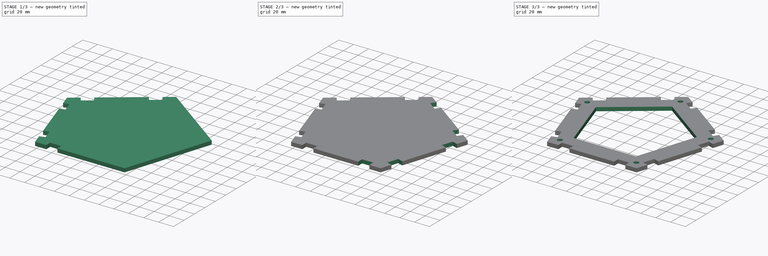
[diagram: build sequence overview — one tinted view per stage of 3, left to right]
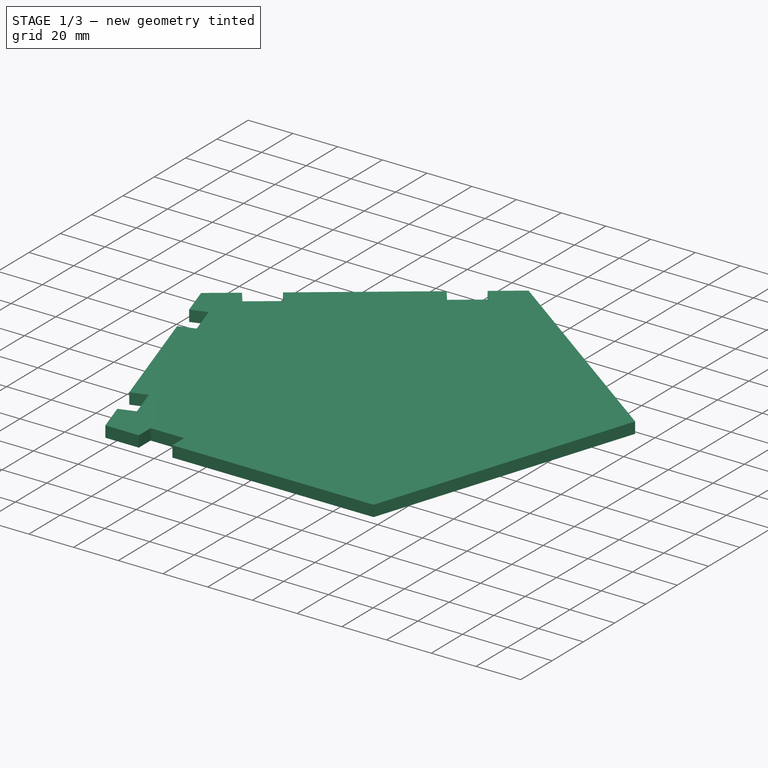
[diagram: stage 1 of 3 — iso view after this stage's code; geometry added in this stage tinted green]
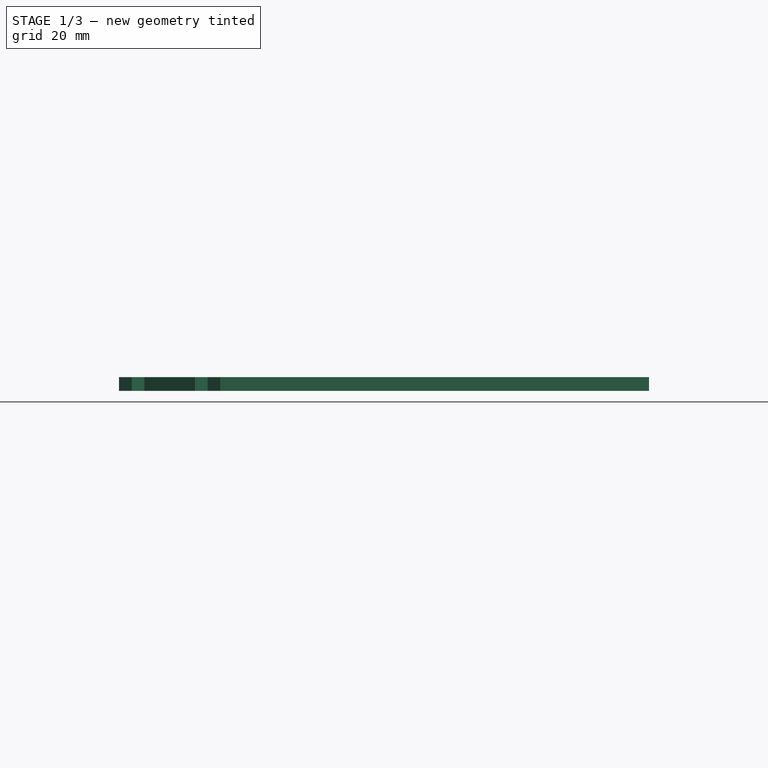
[diagram: stage 1 of 3 — front view after this stage's code; geometry added in this stage tinted green]
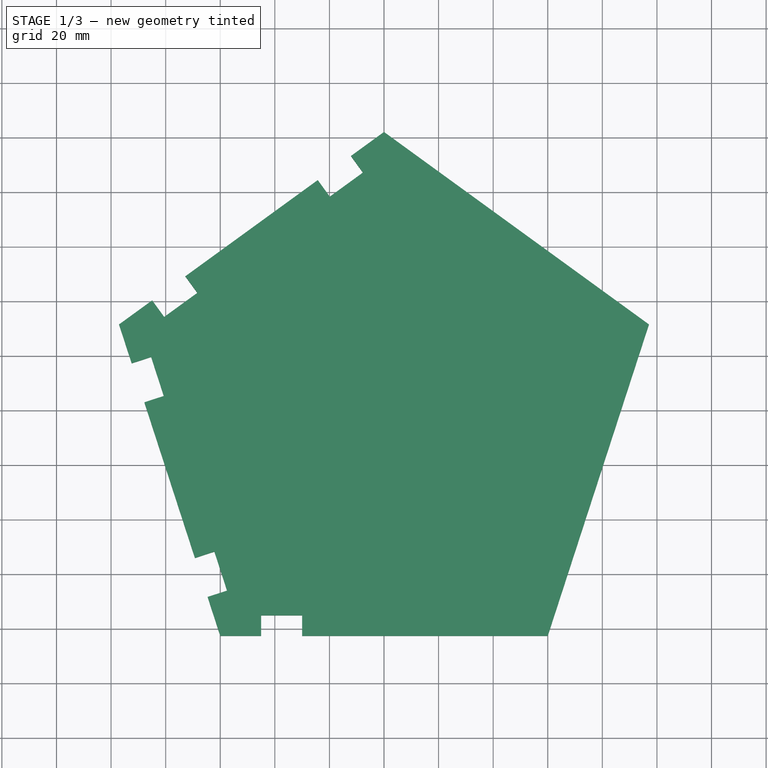
[diagram: stage 1 of 3 — top view after this stage's code; geometry added in this stage tinted green]
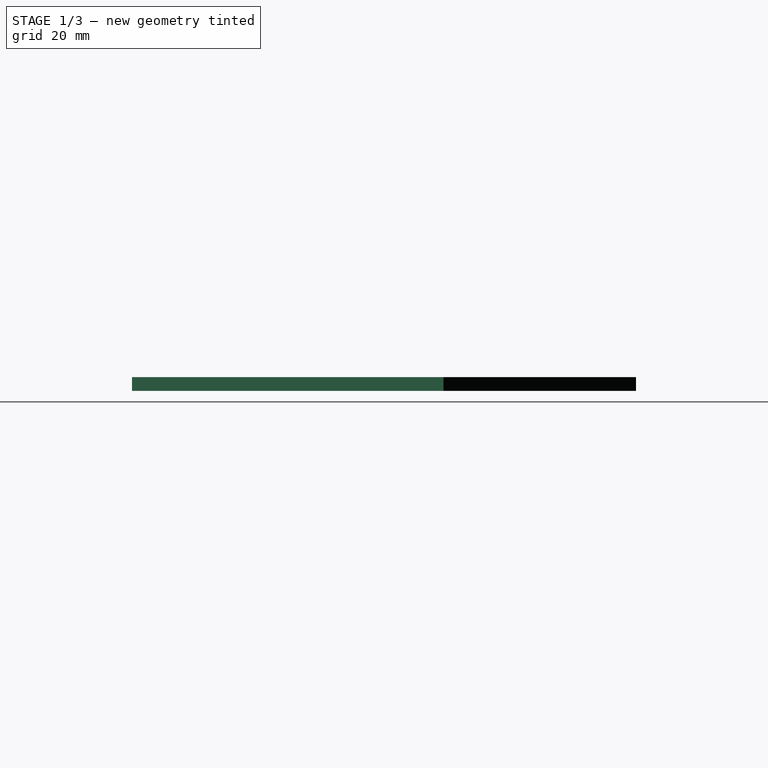
[diagram: stage 1 of 3 — right view after this stage's code; geometry added in this stage tinted green]
FCSTD DOCUMENT  (FreeCAD 0.15R4671 (Git))
Label: haut_rebord
License: All rights reserved
LicenseURL: http://fr.wikipedia.org/wiki/<copyright redacted>
objects: Sketcher::SketchObject×4, PartDesign::Pocket×3, PartDesign::Pad×1, PartDesign::Mirrored×1
note: 13 computed .brp shape members not serialized (recipe doc carries the construction recipe); baked Part::Feature solids carry a one-line shape summary decoded from their .brp

FEATURE [Sketcher::SketchObject] Sketch  label="Pentagone_Sketch"
  sketch-geometry (6):
    g0: LineSegment StartX=0 StartY=102.078 StartZ=0 EndX=-97.082 EndY=31.5439 EndZ=0
    g1: LineSegment StartX=-97.082 StartY=31.5439 StartZ=0 EndX=-60 EndY=-82.5829 EndZ=0
    g2: LineSegment StartX=-60 StartY=-82.5829 StartZ=0 EndX=60 EndY=-82.5829 EndZ=0
    g3: LineSegment StartX=60 StartY=-82.5829 StartZ=0 EndX=97.082 EndY=31.5439 EndZ=0
    g4: LineSegment StartX=97.082 StartY=31.5439 StartZ=0 EndX=0 EndY=102.078 EndZ=0
    g5: Circle [constr] CenterX=0 CenterY=0 CenterZ=0 NormalX=0 NormalY=0 NormalZ=1 Radius=102.078
  constraints (15):
    c: Coincident(g0,g1)
    c: Coincident(g1,g2)
    c: Coincident(g2,g3)
    c: Coincident(g3,g4)
    c: Coincident(g4,g0)
    c: Equal(g0, g1-g4) x4
    c: PointOnObject(g0,g5)
    c: PointOnObject(g1,g5)
    c: PointOnObject(g2,g5)
    c: PointOnObject(g3,g5)
    c: PointOnObject(g4,g5)
    c: Coincident(g2,g-1)
    c: Distance(g0) = 120
    c: Coincident(g5,g-1)
    c: PointOnObject(g0,g-2)
FEATURE [PartDesign::Pad] Pad  label="Pentagone_Pad"
  Length = 5
  Length2 = 100
  Sketch = -> Sketch
  Type = 0
FEATURE [Sketcher::SketchObject] Sketch001
  ExternalGeometry = -> [Pad]
  Placement = pos=(0,0,5) rot=(0,0,1;0rad)
  Support = -> Pad [Face7]
  sketch-geometry (20):
    g0: LineSegment StartX=-84.9468 StartY=40.3606 StartZ=0 EndX=-72.8115 EndY=49.1774 EndZ=0
    g1: LineSegment StartX=-72.8115 StartY=49.1774 StartZ=0 EndX=-68.4031 EndY=43.1098 EndZ=0
    g2: LineSegment StartX=-68.4031 StartY=43.1098 StartZ=0 EndX=-80.5384 EndY=34.293 EndZ=0
    g3: LineSegment StartX=-80.5384 StartY=34.293 StartZ=0 EndX=-84.9468 EndY=40.3606 EndZ=0
    g4: LineSegment StartX=-12.1353 StartY=93.2613 StartZ=0 EndX=-7.72687 EndY=87.1937 EndZ=0
    g5: LineSegment StartX=-7.72687 StartY=87.1937 StartZ=0 EndX=-19.8621 EndY=78.3769 EndZ=0
    g6: LineSegment StartX=-19.8621 StartY=78.3769 StartZ=0 EndX=-24.2705 EndY=84.4445 EndZ=0
    g7: LineSegment StartX=-24.2705 StartY=84.4445 StartZ=0 EndX=-12.1353 EndY=93.2613 EndZ=0
    g8: LineSegment StartX=-92.4468 StartY=17.278 StartZ=0 EndX=-85.3139 EndY=19.5956 EndZ=0
    g9: LineSegment StartX=-85.3139 StartY=19.5956 StartZ=0 EndX=-80.6786 EndY=5.3298 EndZ=0
    g10: LineSegment StartX=-80.6786 StartY=5.3298 StartZ=0 EndX=-87.8115 EndY=3.01217 EndZ=0
    g11: LineSegment StartX=-87.8115 StartY=3.01217 StartZ=0 EndX=-92.4468 EndY=17.278 EndZ=0
    g12: LineSegment StartX=-69.2705 StartY=-54.0512 StartZ=0 EndX=-62.1376 EndY=-51.7336 EndZ=0
    g13: LineSegment StartX=-62.1376 StartY=-51.7336 StartZ=0 EndX=-57.5023 EndY=-65.9994 EndZ=0
    g14: LineSegment StartX=-57.5023 StartY=-65.9994 StartZ=0 EndX=-64.6353 EndY=-68.3171 EndZ=0
    g15: LineSegment StartX=-64.6353 StartY=-68.3171 StartZ=0 EndX=-69.2705 EndY=-54.0512 EndZ=0
    g16: LineSegment StartX=-45 StartY=-82.5829 StartZ=0 EndX=-45 EndY=-75.0829 EndZ=0
    g17: LineSegment StartX=-45 StartY=-75.0829 StartZ=0 EndX=-30 EndY=-75.0829 EndZ=0
    g18: LineSegment StartX=-30 StartY=-75.0829 StartZ=0 EndX=-30 EndY=-82.5829 EndZ=0
    g19: LineSegment StartX=-30 StartY=-82.5829 StartZ=0 EndX=-45 EndY=-82.5829 EndZ=0
  constraints (61):
    c: PointOnObject(g0,g-3)
    c: PointOnObject(g0,g-3)
    c: Coincident(g0,g1)
    c: Coincident(g1,g2)
    c: Coincident(g2,g3)
    c: Coincident(g3,g0)
    c: Parallel(g1,g3)
    c: Perpendicular(g-3,g1)
    c: Parallel(g2,g-3)
    c: Distance(g0,g-4) = 15
    c: Distance(g1) = 7.5
    c: Distance(g2) = 15
    c: PointOnObject(g4,g-3)
    c: Coincident(g4,g5)
    c: Coincident(g5,g6)
    c: PointOnObject(g6,g-3)
    c: Coincident(g6,g7)
    c: Coincident(g7,g4)
    c: Perpendicular(g4,g-3)
    c: Parallel(g5,g-3)
    c: Equal(g1,g6)
    c: Equal(g6,g4)
    c: Equal(g5,g2)
    c: Distance(g4,g-3) = 15
    c: PointOnObject(g8,g-4)
    c: Coincident(g8,g9)
    c: Coincident(g9,g10)
    c: PointOnObject(g10,g-4)
    c: Coincident(g10,g11)
    c: Coincident(g11,g8)
    c: Parallel(g8,g10)
    c: Equal(g3,g8)
    c: Equal(g8,g10)
    c: Equal(g9,g2)
    c: Perpendicular(g-4,g8)
    c: Distance(g-4,g8) = 15
    c: PointOnObject(g12,g-4)
    c: Coincident(g12,g13)
    c: Coincident(g13,g14)
    c: PointOnObject(g14,g-4)
    c: Coincident(g14,g15)
    c: Coincident(g15,g12)
    c: Perpendicular(g-4,g12)
    c: Equal(g12,g14)
    c: Equal(g14,g10)
    c: Equal(g13,g9)
    c: Parallel(g12,g14)
    c: Distance(g14,g-4) = 15
    c: PointOnObject(g16,g-5)
    c: Vertical(g16)
    c: Coincident(g16,g17)
    c: Horizontal(g17)
    c: Coincident(g17,g18)
    c: Vertical(g18)
    c: Coincident(g18,g19)
    c: Coincident(g19,g16)
    c: Horizontal(g19)
    c: Equal(g16,g18)
    c: Equal(g18,g14)
    c: Equal(g17,g13)
    c: Distance(g16,g-5) = 15
FEATURE [PartDesign::Pocket] Pocket  label="BorderAttachLeft_Pocket"
  Length = 0
  Sketch = -> Sketch001
  Type = 1
  UpToFace = -> Pad [Face6]
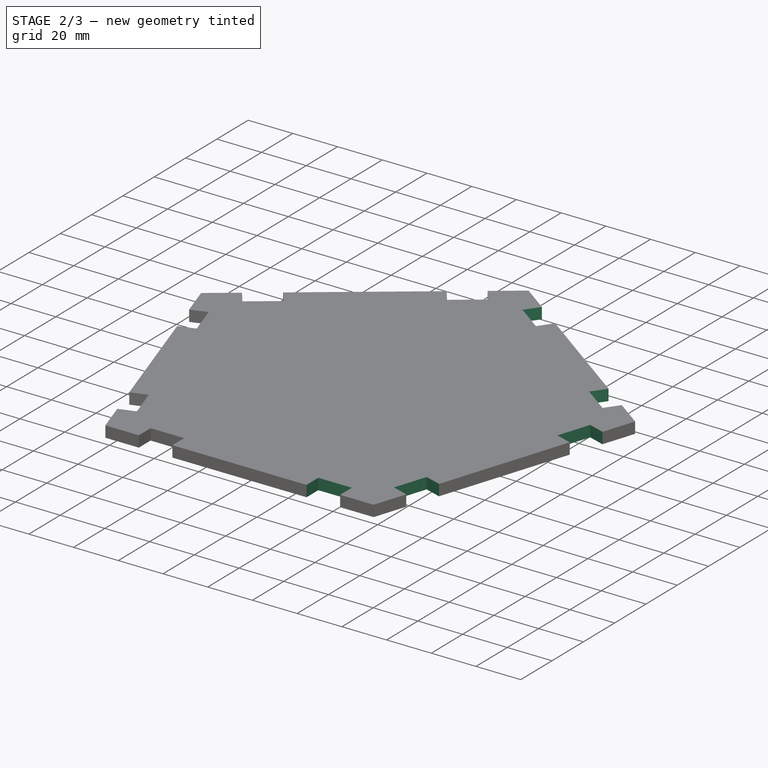
[diagram: stage 2 of 3 — iso view after this stage's code; geometry added in this stage tinted green]
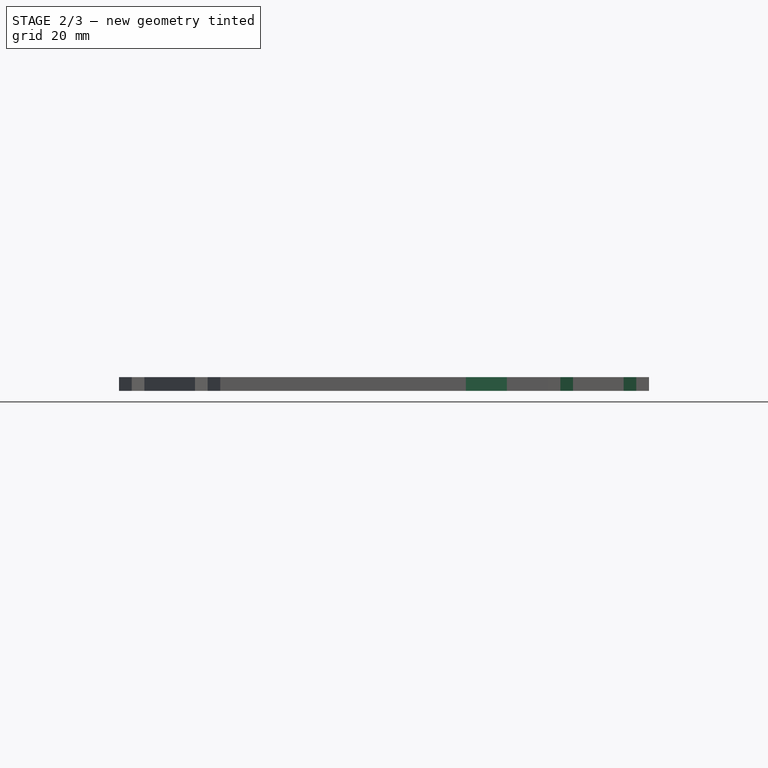
[diagram: stage 2 of 3 — front view after this stage's code; geometry added in this stage tinted green]
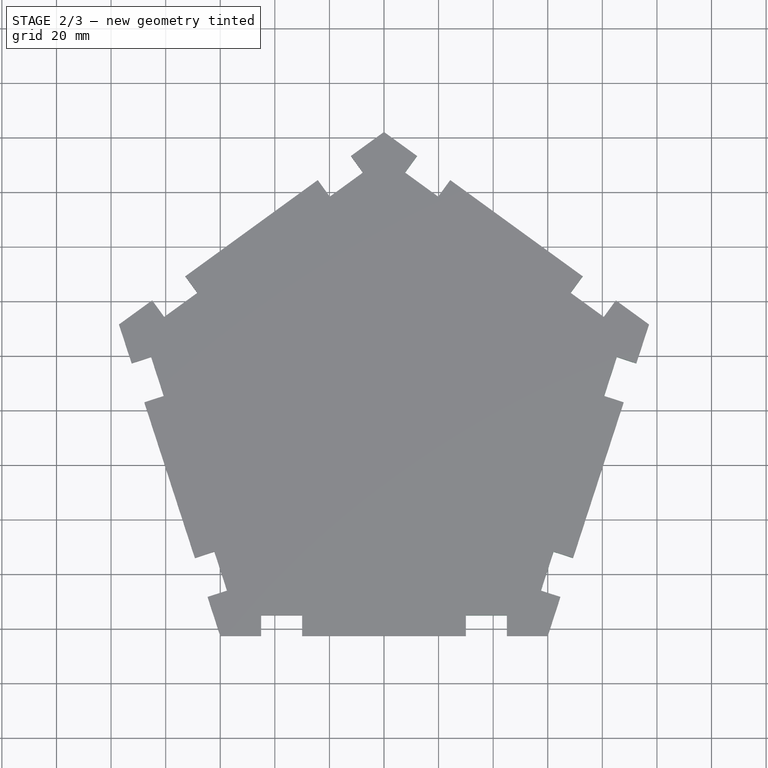
[diagram: stage 2 of 3 — top view after this stage's code; geometry added in this stage tinted green]
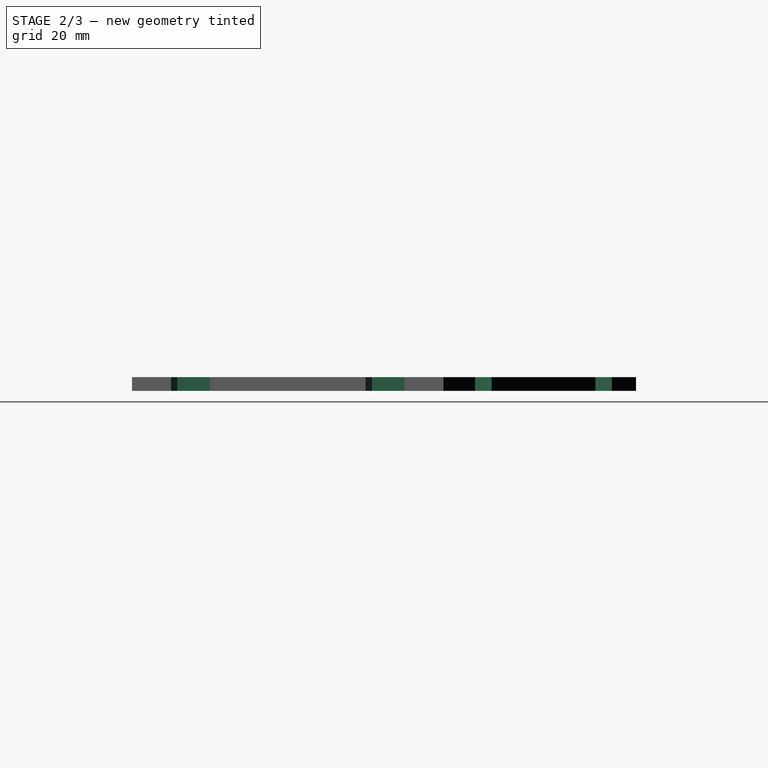
[diagram: stage 2 of 3 — right view after this stage's code; geometry added in this stage tinted green]
FEATURE [PartDesign::Mirrored] Mirrored  label="BorderAttachAll_Mirrored"
  MirrorPlane = -> Sketch001 [V_Axis]
  Originals = -> [Pocket]
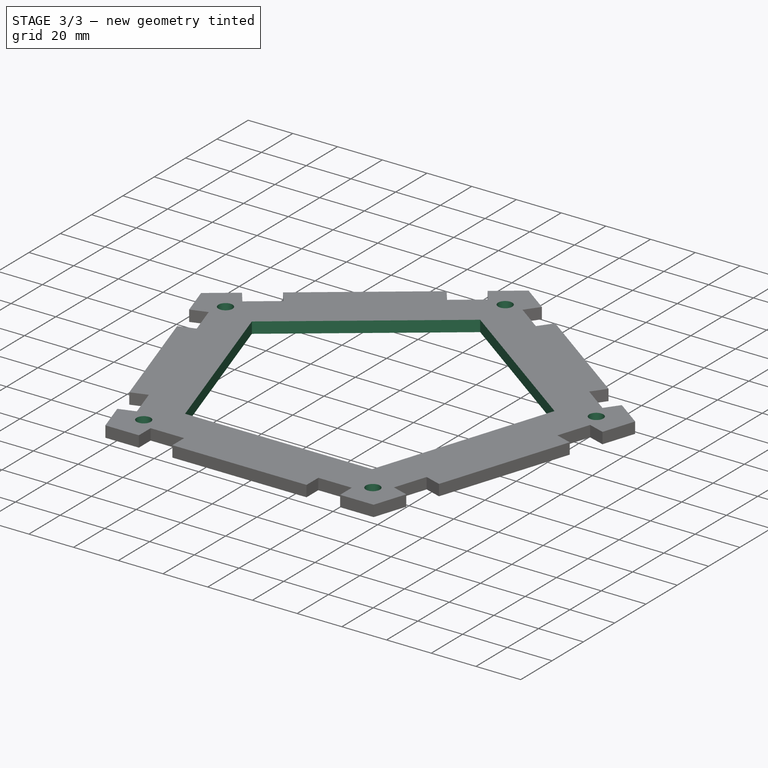
[diagram: stage 3 of 3 — iso view after this stage's code; geometry added in this stage tinted green]
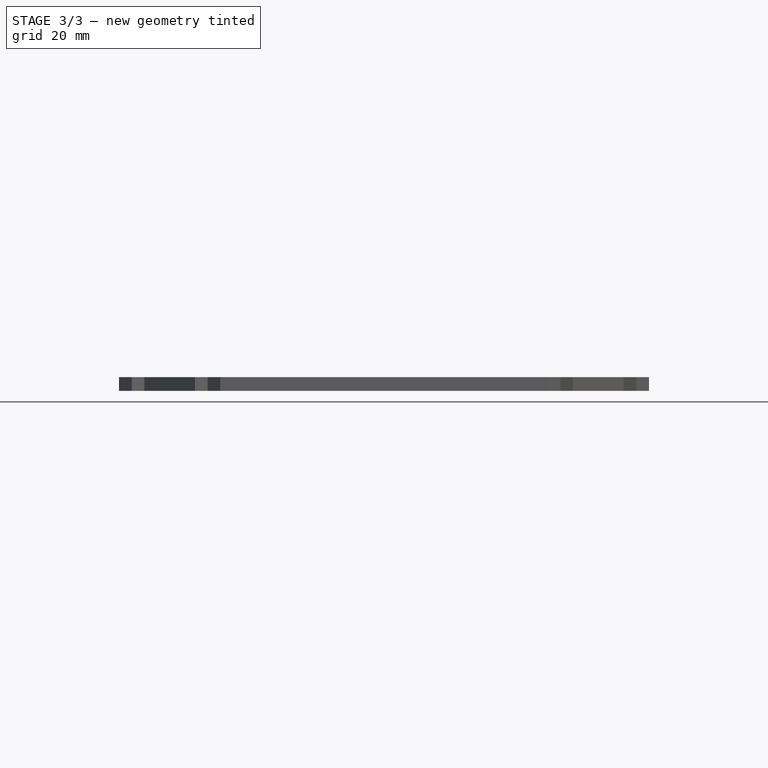
[diagram: stage 3 of 3 — front view after this stage's code; geometry added in this stage tinted green]
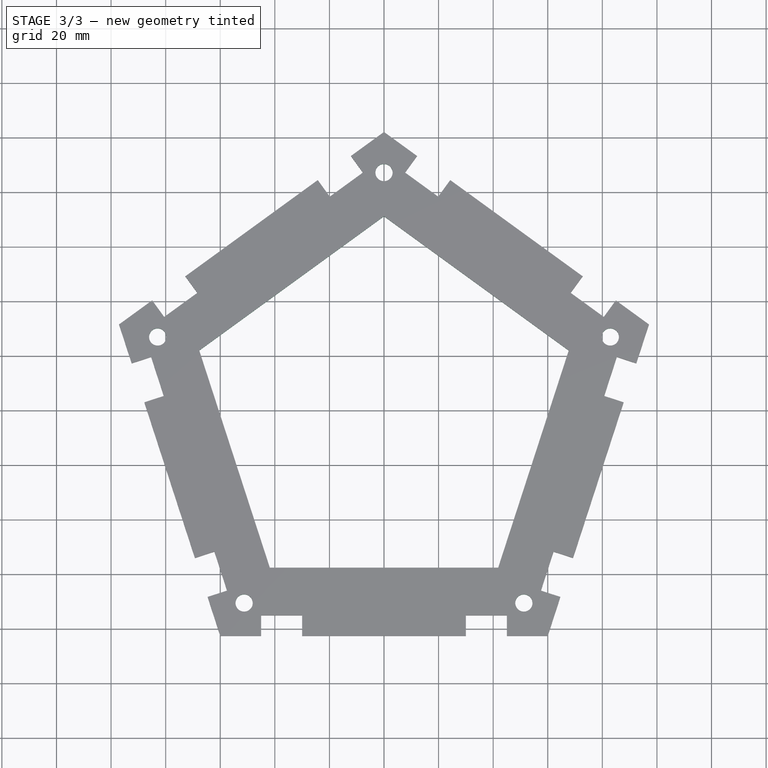
[diagram: stage 3 of 3 — top view after this stage's code; geometry added in this stage tinted green]
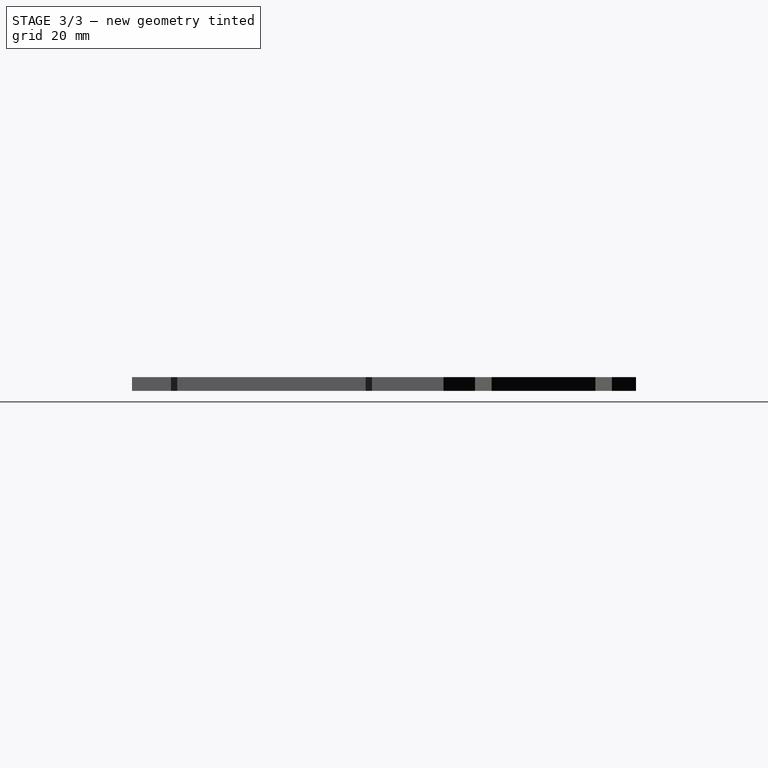
[diagram: stage 3 of 3 — right view after this stage's code; geometry added in this stage tinted green]
FEATURE [Sketcher::SketchObject] Sketch004
  ExternalGeometry = -> [Mirrored]
  Placement = pos=(0,0,0) rot=(1,0,0;3.14159rad)
  Support = -> Mirrored [Face2]
  sketch-geometry (5):
    g0: Circle CenterX=-51.2512 CenterY=70.5412 CenterZ=0 NormalX=0 NormalY=0 NormalZ=1 Radius=3.15
    g1: Circle CenterX=-82.9261 CenterY=-26.9443 CenterZ=0 NormalX=0 NormalY=0 NormalZ=1 Radius=3.15
    g2: Circle CenterX=0 CenterY=-87.1937 CenterZ=0 NormalX=0 NormalY=0 NormalZ=1 Radius=3.15
    g3: Circle CenterX=82.9261 CenterY=-26.9443 CenterZ=0 NormalX=0 NormalY=0 NormalZ=1 Radius=3.15
    g4: Circle CenterX=51.2512 CenterY=70.5412 CenterZ=0 NormalX=0 NormalY=0 NormalZ=1 Radius=3.15
  constraints (10):
    c: Radius(g4) = 3.15
    c: Equal(g4,g3)
    c: Equal(g4,g2)
    c: Equal(g4,g1)
    c: Equal(g4,g0)
    c: Symmetric(g-4,g-3,g0)
    c: Symmetric(g-11,g-12,g4)
    c: Symmetric(g-10,g-9,g3)
    c: Symmetric(g-7,g-8,g2)
    c: Symmetric(g-6,g-5,g1)
FEATURE [PartDesign::Pocket] Pocket002  label="ScrewHoles_Pocket002"
  Length = 5
  Sketch = -> Sketch004
  Type = 1
FEATURE [Sketcher::SketchObject] Sketch005
  ExternalGeometry = -> [Pocket002]
  Placement = pos=(0,0,0) rot=(1,0,0;3.14159rad)
  Support = -> Pocket002 [Face2]
  sketch-geometry (7):
    g0: LineSegment StartX=0 StartY=-71.1764 StartZ=0 EndX=67.6928 EndY=-21.9947 EndZ=0
    g1: LineSegment StartX=67.6928 StartY=-21.9947 StartZ=0 EndX=41.8364 EndY=57.5829 EndZ=0
    g2: LineSegment StartX=41.8364 StartY=57.5829 StartZ=0 EndX=-41.8364 EndY=57.5829 EndZ=0
    g3: LineSegment StartX=-41.8364 StartY=57.5829 StartZ=0 EndX=-67.6928 EndY=-21.9947 EndZ=0
    g4: LineSegment StartX=-67.6928 StartY=-21.9947 StartZ=0 EndX=0 EndY=-71.1764 EndZ=0
    g5: Circle [constr] CenterX=0 CenterY=0 CenterZ=0 NormalX=0 NormalY=0 NormalZ=1 Radius=71.1764
    g6: LineSegment [constr] StartX=-54.7646 StartY=17.7941 StartZ=0 EndX=-78.541 EndY=25.5195 EndZ=0
  constraints (18):
    c: Coincident(g0,g1)
    c: Coincident(g1,g2)
    c: Coincident(g2,g3)
    c: Coincident(g3,g4)
    c: Coincident(g4,g0)
    c: Equal(g0, g1-g4) x4
    c: PointOnObject(g0,g5)
    c: PointOnObject(g1,g5)
    c: PointOnObject(g2,g5)
    c: PointOnObject(g3,g5)
    c: PointOnObject(g4,g5)
    c: Coincident(g5,g-1)
    c: PointOnObject(g6,g-3)
    c: PointOnObject(g6,g3)
    c: Perpendicular(g6,g-3)
    c: Symmetric(g-3,g-3,g6)
    c: PointOnObject(g0,g-2)
    c: Distance(g6) = 25
FEATURE [PartDesign::Pocket] Pocket003  label="CenterCavity_Pocket003"
  Length = 5
  Sketch = -> Sketch005
  Type = 1
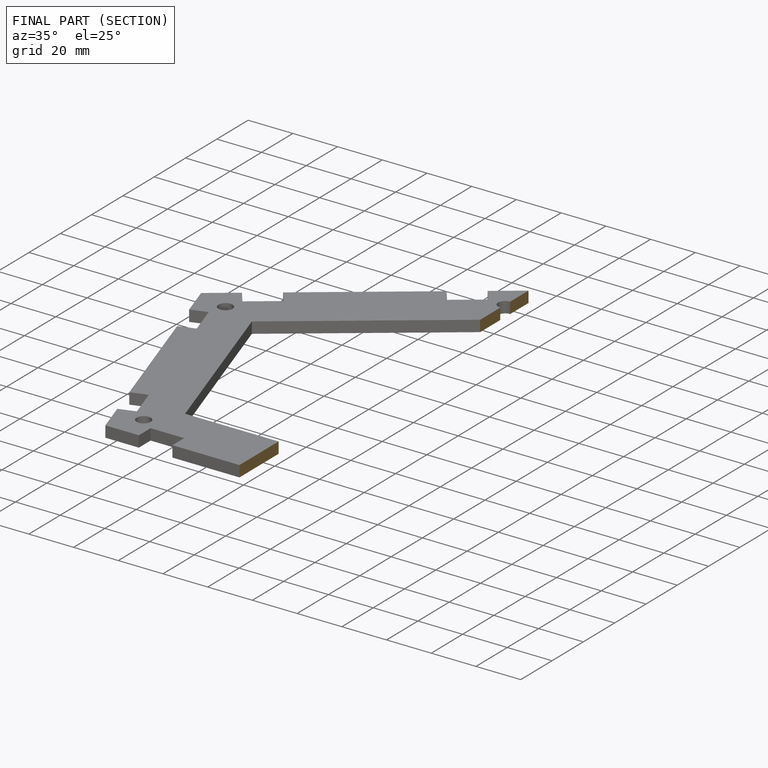
[diagram: finished part — half-section view (interior)]
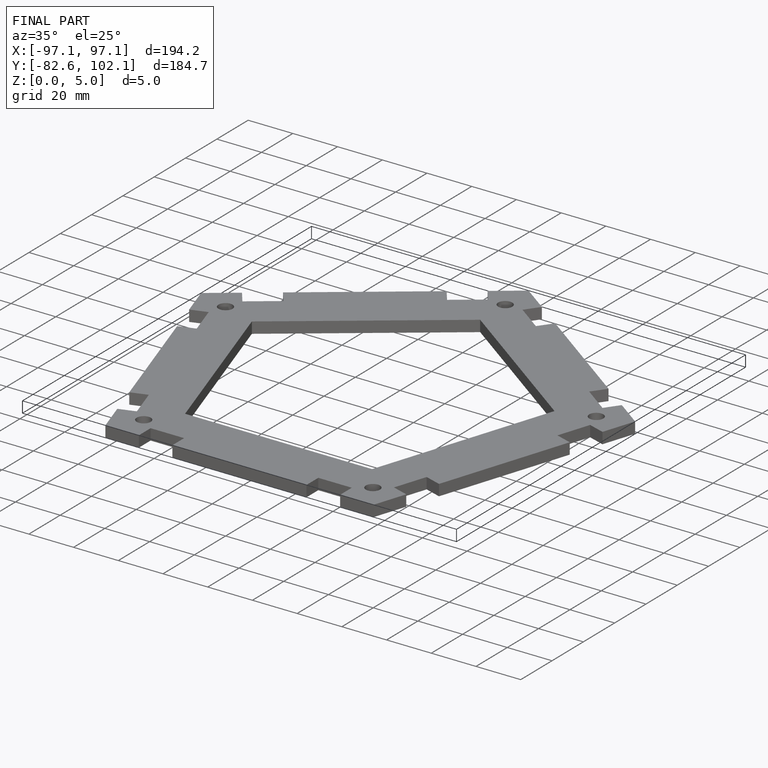
[diagram: finished part — iso view with bounding-box wireframe]
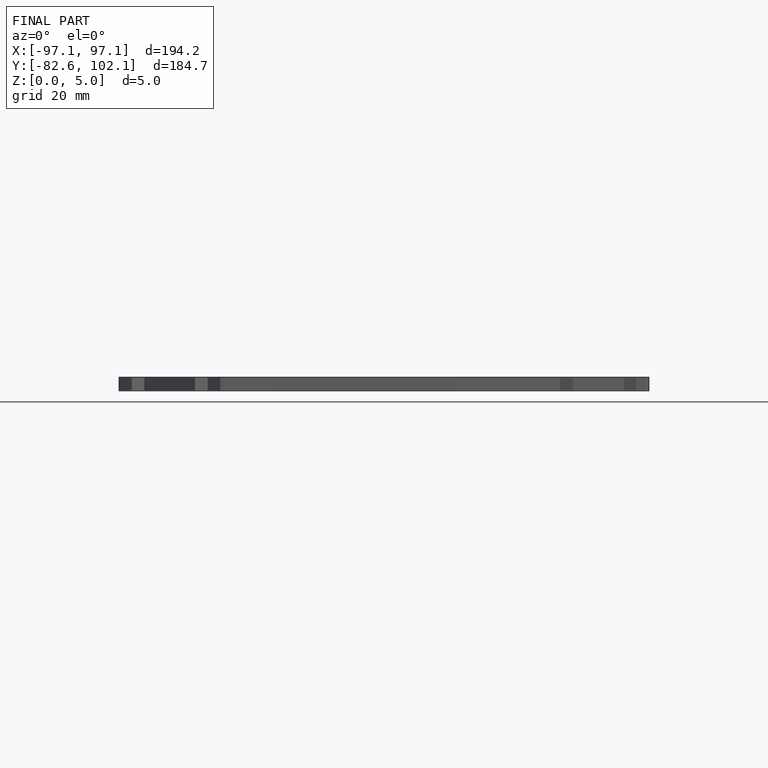
[diagram: finished part — front view with bounding-box wireframe]
